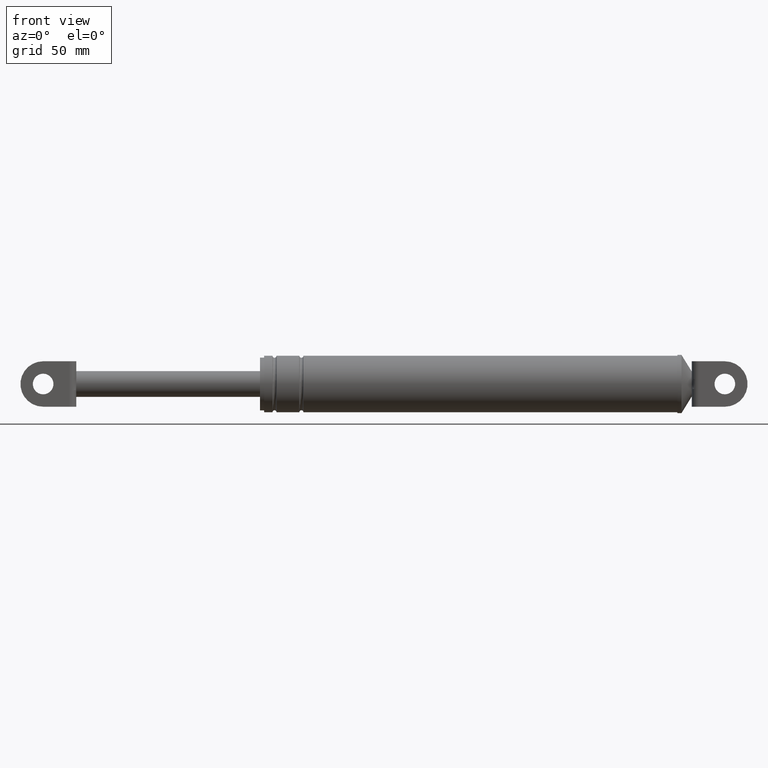
[diagram: clean part render]
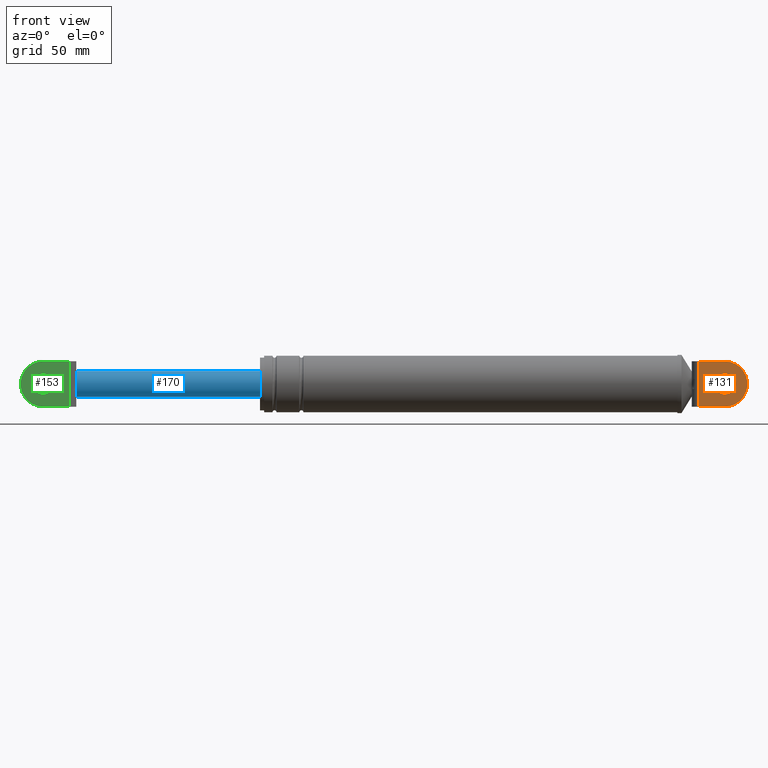
[diagram: same view with three faces highlighted in distinct colors, each labeled with its STEP entity id]
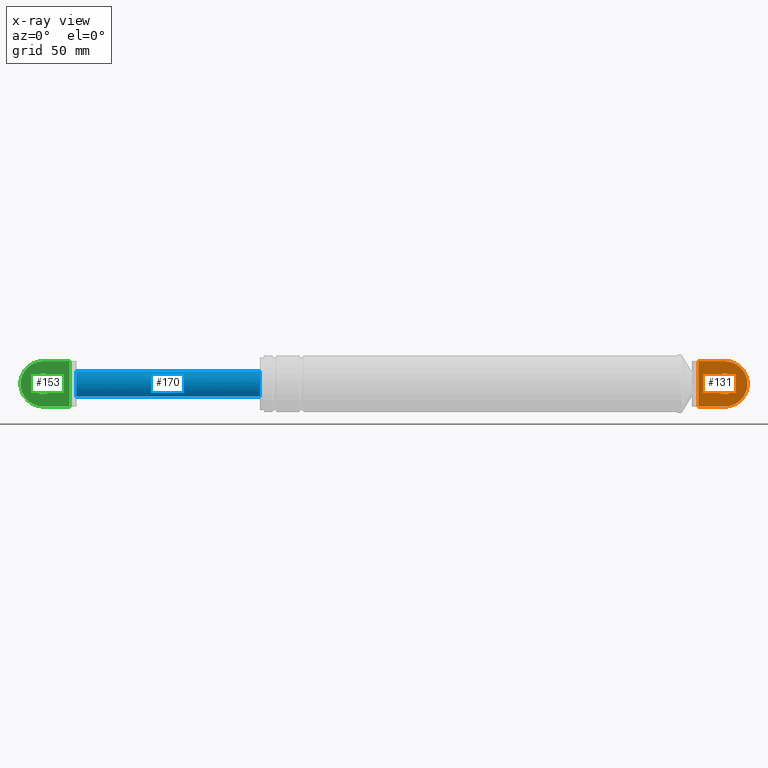
[diagram: x-ray of the same camera — body ghosted, the three highlighted faces saturated]
A machine part, front view with three faces highlighted in distinct colors.
The next image is the same camera in x-ray (body ghosted, the three faces saturated) — at least one of them is partly hidden behind the body in this view.
Their STEP definitions:

[orange] entity #131 — the highlighted planar face has unit normal (0, -1, 0).
#131=ADVANCED_FACE('',(#372,#373),#371,.T.);
#371=PLANE('',#1337);
#372=FACE_OUTER_BOUND('',#1338,.T.);
#373=FACE_BOUND('',#1339,.T.);
#1334=CARTESIAN_POINT('',(3.63950805697E+002,-8.69999700000E+000,1.77172911033E+002));
#1335=DIRECTION('',(0.00000000000E+000,-1.00000000000E+000,0.00000000000E+000));
#1336=DIRECTION('',(1.00000000000E+000,0.00000000000E+000,0.00000000000E+000));
#1337=AXIS2_PLACEMENT_3D('',#1334,#1335,#1336);
#1338=EDGE_LOOP('',(#2025,#2026,#2027,#2028,#2029,#2030));
#1339=EDGE_LOOP('',(#2031,#2032));
#2025=ORIENTED_EDGE('',*,*,#2290,.F.);
#2026=ORIENTED_EDGE('',*,*,#2265,.T.);
#2027=ORIENTED_EDGE('',*,*,#2267,.T.);
#2028=ORIENTED_EDGE('',*,*,#2270,.T.);
#2029=ORIENTED_EDGE('',*,*,#2296,.T.);
#2030=ORIENTED_EDGE('',*,*,#2248,.T.);
#2031=ORIENTED_EDGE('',*,*,#2303,.F.);
#2032=ORIENTED_EDGE('',*,*,#2304,.F.);
#2248=EDGE_CURVE('',#2447,#2440,#2448,.T.);
#2265=EDGE_CURVE('',#2549,#2556,#2563,.T.);
#2267=EDGE_CURVE('',#2556,#2570,#2577,.T.);
#2270=EDGE_CURVE('',#2570,#2589,#2597,.T.);
#2290=EDGE_CURVE('',#2549,#2440,#2732,.T.);
#2296=EDGE_CURVE('',#2589,#2447,#2769,.T.);
#2303=EDGE_CURVE('',#2815,#2816,#2817,.T.);
#2304=EDGE_CURVE('',#2816,#2815,#2823,.T.);
#2440=VERTEX_POINT('',#3459);
#2447=VERTEX_POINT('',#3463);
#2448=CIRCLE('',#3467,1.10000000000E+001);
#2549=VERTEX_POINT('',#3535);
#2556=VERTEX_POINT('',#3540);
#2563=LINE('',#3545,#3546);
#2570=VERTEX_POINT('',#3549);
#2577=(BOUNDED_CURVE() B_SPLINE_CURVE(3,(#3554,#3555,#3556,#3557,#3558,#3559,#3560,#3561,#3562,#3563),.UNSPECIFIED.,.F.,.F.) B_SPLINE_CURVE_WITH_KNOTS((4,2,2,2,4),(0.00000000000E+000,1.19890467989E-003,2.39780935978E-003,3.59671403966E-003,4.79561871955E-003),.UNSPECIFIED.) CURVE() GEOMETRIC_REPRESENTATION_ITEM() RATIONAL_B_SPLINE_CURVE((1.00000000000E+000,1.00000000000E+000,1.00000000000E+000,1.00000000000E+000,1.00000000000E+000,1.00000000000E+000,1.00000000000E+000,1.00000000000E+000,1.00000000000E+000,1.00000000000E+000)) REPRESENTATION_ITEM('') );
#2589=VERTEX_POINT('',#3568);
#2597=LINE('',#3574,#3575);
#2732=LINE('',#3662,#3663);
#2769=LINE('',#3681,#3682);
#2815=VERTEX_POINT('',#3711);
#2816=VERTEX_POINT('',#3712);
#2817=CIRCLE('',#3716,5.00000000000E+000);
#2823=CIRCLE('',#3720,5.00000000000E+000);
#3459=CARTESIAN_POINT('',(3.79174044462E+002,-8.69999700000E+000,2.01372912185E+002));
#3463=CARTESIAN_POINT('',(3.79174044462E+002,-8.69999700000E+000,1.79372912185E+002));
#3464=CARTESIAN_POINT('',(3.79174045421E+002,-8.69999700000E+000,1.90372912185E+002));
#3465=DIRECTION('',(0.00000000000E+000,-1.00000000000E+000,-0.00000000000E+000));
#3466=DIRECTION('',(-8.72664508346E-008,0.00000000000E+000,-1.00000000000E+000));
#3467=AXIS2_PLACEMENT_3D('',#3464,#3465,#3466);
#3535=CARTESIAN_POINT('',(3.66374045421E+002,-8.69999700000E+000,2.01372912185E+002));
#3540=CARTESIAN_POINT('',(3.66374045421E+002,-8.69999700000E+000,1.92770834827E+002));
#3545=CARTESIAN_POINT('',(3.66374045421E+002,-8.69999700000E+000,2.01372912185E+002));
#3546=VECTOR('',#3547,8.60207735738E+000);
#3547=DIRECTION('',(0.00000000000E+000,0.00000000000E+000,-1.00000000000E+000));
#3549=CARTESIAN_POINT('',(3.66374045421E+002,-8.69999700000E+000,1.87974989542E+002));
#3554=CARTESIAN_POINT('',(3.66374045421E+002,-8.69999700000E+000,1.92770834827E+002));
#3555=CARTESIAN_POINT('',(3.66374045421E+002,-8.69999700000E+000,1.92371178741E+002));
#3556=CARTESIAN_POINT('',(3.66362420076E+002,-8.69999700000E+000,1.91971642381E+002));
#3557=CARTESIAN_POINT('',(3.66342561150E+002,-8.69999700000E+000,1.91172534731E+002));
#3558=CARTESIAN_POINT('',(3.66334745568E+002,-8.69999700000E+000,1.90772959135E+002));
#3559=CARTESIAN_POINT('',(3.66334736581E+002,-8.69999700000E+000,1.89973647055E+002));
#3560=CARTESIAN_POINT('',(3.66342547254E+002,-8.69999700000E+000,1.89573888848E+002));
#3561=CARTESIAN_POINT('',(3.66362410726E+002,-8.69999700000E+000,1.88774518249E+002));
#3562=CARTESIAN_POINT('',(3.66374045421E+002,-8.69999700000E+000,1.88374865670E+002));
#3563=CARTESIAN_POINT('',(3.66374045421E+002,-8.69999700000E+000,1.87974989542E+002));
#3568=CARTESIAN_POINT('',(3.66374045421E+002,-8.69999700000E+000,1.79372912185E+002));
#3574=CARTESIAN_POINT('',(3.66374045421E+002,-8.69999700000E+000,1.87974989542E+002));
#3575=VECTOR('',#3576,8.60207735738E+000);
#3576=DIRECTION('',(0.00000000000E+000,0.00000000000E+000,-1.00000000000E+000));
#3662=CARTESIAN_POINT('',(3.66374045421E+002,-8.69999700000E+000,2.01372912185E+002));
#3663=VECTOR('',#3664,1.27999990401E+001);
#3664=DIRECTION('',(1.00000000000E+000,0.00000000000E+000,0.00000000000E+000));
#3681=CARTESIAN_POINT('',(3.66374045421E+002,-8.69999700000E+000,1.79372912185E+002));
#3682=VECTOR('',#3683,1.27999990401E+001);
#3683=DIRECTION('',(1.00000000000E+000,0.00000000000E+000,0.00000000000E+000));
#3711=CARTESIAN_POINT('',(3.79174045421E+002,-8.69999700000E+000,1.85372912185E+002));
#3712=CARTESIAN_POINT('',(3.79174045421E+002,-8.69999700000E+000,1.95372912185E+002));
#3713=CARTESIAN_POINT('',(3.79174045421E+002,-8.69999700000E+000,1.90372912185E+002));
#3714=DIRECTION('',(1.25607396695E-016,-1.00000000000E+000,0.00000000000E+000));
#3715=DIRECTION('',(1.22460635382E-016,1.53819616079E-032,1.00000000000E+000));
#3716=AXIS2_PLACEMENT_3D('',#3713,#3714,#3715);
#3717=CARTESIAN_POINT('',(3.79174045421E+002,-8.69999700000E+000,1.90372912185E+002));
#3718=DIRECTION('',(1.25607396695E-016,-1.00000000000E+000,0.00000000000E+000));
#3719=DIRECTION('',(1.22460635382E-016,1.53819616079E-032,1.00000000000E+000));
#3720=AXIS2_PLACEMENT_3D('',#3717,#3718,#3719);

[blue] entity #170 — the highlighted cylindrical surface (edge-blend (fillet) strip) has radius 6.25 mm, axis along (-1, -0, 0).
#170=ADVANCED_FACE('',(#767),#766,.T.);
#766=CYLINDRICAL_SURFACE('',#1902,6.25000000000E+000);
#767=FACE_OUTER_BOUND('',#1903,.T.);
#1899=CARTESIAN_POINT('',(5.62740454214E+001,-8.54724656640E-014,1.90372912185E+002));
#1900=DIRECTION('',(-1.00000000000E+000,-1.60777467769E-015,9.84478056393E-032));
#1901=DIRECTION('',(-1.82931579869E-028,1.13718131402E-013,-1.00000000000E+000));
#1902=AXIS2_PLACEMENT_3D('',#1899,#1900,#1901);
#1903=EDGE_LOOP('',(#2213,#2214,#2215,#2216,#2217,#2218));
#2213=ORIENTED_EDGE('',*,*,#2369,.F.);
#2214=ORIENTED_EDGE('',*,*,#2351,.F.);
#2215=ORIENTED_EDGE('',*,*,#2377,.F.);
#2216=ORIENTED_EDGE('',*,*,#2391,.F.);
#2217=ORIENTED_EDGE('',*,*,#2389,.F.);
#2218=ORIENTED_EDGE('',*,*,#2392,.T.);
#2351=EDGE_CURVE('',#3123,#3130,#3131,.T.);
#2369=EDGE_CURVE('',#3130,#3250,#3251,.T.);
#2377=EDGE_CURVE('',#3297,#3123,#3304,.T.);
#2389=EDGE_CURVE('',#3381,#3382,#3383,.T.);
#2391=EDGE_CURVE('',#3382,#3297,#3395,.T.);
#2392=EDGE_CURVE('',#3381,#3250,#3401,.T.);
#3123=VERTEX_POINT('',#3895);
#3130=VERTEX_POINT('',#3900);
#3131=CIRCLE('',#3904,6.25000000000E+000);
#3250=VERTEX_POINT('',#3982);
#3251=CIRCLE('',#3986,6.25000000000E+000);
#3297=VERTEX_POINT('',#4012);
#3304=CIRCLE('',#4020,6.25000000000E+000);
#3381=VERTEX_POINT('',#4063);
#3382=VERTEX_POINT('',#4064);
#3383=CIRCLE('',#4068,6.25000000000E+000);
#3395=(BOUNDED_CURVE() B_SPLINE_CURVE(1,(#4073,#4074),.UNSPECIFIED.,.F.,.F.) B_SPLINE_CURVE_WITH_KNOTS((2,2),(8.33333332085E-002,9.16666666563E-001),.UNSPECIFIED.) CURVE() GEOMETRIC_REPRESENTATION_ITEM() RATIONAL_B_SPLINE_CURVE((1.00000000000E+000,1.00000000000E+000)) REPRESENTATION_ITEM('') );
#3401=(BOUNDED_CURVE() B_SPLINE_CURVE(1,(#4075,#4076),.UNSPECIFIED.,.F.,.F.) B_SPLINE_CURVE_WITH_KNOTS((2,2),(8.33333333333E-002,9.16666666667E-001),.UNSPECIFIED.) CURVE() GEOMETRIC_REPRESENTATION_ITEM() RATIONAL_B_SPLINE_CURVE((7.50000000000E-001,7.50000000000E-001)) REPRESENTATION_ITEM('') );
#3895=CARTESIAN_POINT('',(6.51740454214E+001,-5.49999700000E+000,1.87404321105E+002));
#3900=CARTESIAN_POINT('',(6.51740454214E+001,-5.49999700000E+000,1.93341503265E+002));
#3901=CARTESIAN_POINT('',(6.51740454214E+001,-5.57776047572E-013,1.90372912185E+002));
#3902=DIRECTION('',(-1.00000000000E+000,-1.44325364090E-014,-6.76990380730E-015));
#3903=DIRECTION('',(-1.59161572810E-014,8.79999520000E-001,4.74974572793E-001));
#3904=AXIS2_PLACEMENT_3D('',#3901,#3902,#3903);
#3982=CARTESIAN_POINT('',(6.51740454214E+001,7.57709452622E-007,1.96622912185E+002));
#3983=CARTESIAN_POINT('',(6.51740454214E+001,3.86357612570E-013,1.90372912185E+002));
#3984=DIRECTION('',(-1.00000000000E+000,-1.17418449198E-014,6.96795749255E-015));
#3985=DIRECTION('',(-1.36424205266E-014,8.79999520000E-001,-4.74974572793E-001));
#3986=AXIS2_PLACEMENT_3D('',#3983,#3984,#3985);
#4012=CARTESIAN_POINT('',(6.51740454214E+001,4.91249817418E-012,1.84122912185E+002));
#4017=CARTESIAN_POINT('',(6.51740454214E+001,1.12887477144E-012,1.90372912185E+002));
#4018=DIRECTION('',(-1.00000000000E+000,0.00000000000E+000,0.00000000000E+000));
#4019=DIRECTION('',(-0.00000000000E+000,-8.79999520000E-001,4.74974572793E-001));
#4020=AXIS2_PLACEMENT_3D('',#4017,#4018,#4019);
#4063=CARTESIAN_POINT('',(1.54174045421E+002,7.19286752820E-014,1.96622912185E+002));
#4064=CARTESIAN_POINT('',(1.54174045421E+002,7.28306304154E-014,1.84122912185E+002));
#4065=CARTESIAN_POINT('',(1.54174045421E+002,7.19286752820E-014,1.90372912185E+002));
#4066=DIRECTION('',(1.00000000000E+000,0.00000000000E+000,-0.00000000000E+000));
#4067=DIRECTION('',(0.00000000000E+000,-1.22460635382E-016,1.00000000000E+000));
#4068=AXIS2_PLACEMENT_3D('',#4065,#4066,#4067);
#4073=CARTESIAN_POINT('',(1.54174045435E+002,7.82666996569E-013,1.84122912185E+002));
#4074=CARTESIAN_POINT('',(6.51740454325E+001,6.39575050250E-013,1.84122912185E+002));
#4075=CARTESIAN_POINT('',(1.54174045421E+002,-6.38674298633E-013,1.96622912185E+002));
#4076=CARTESIAN_POINT('',(6.51740454214E+001,-7.81522994468E-013,1.96622912185E+002));

[green] entity #153 — the highlighted planar face has unit normal (0, -1, 0).
#153=ADVANCED_FACE('',(#593,#594),#592,.T.);
#592=PLANE('',#1544);
#593=FACE_OUTER_BOUND('',#1545,.T.);
#594=FACE_BOUND('',#1546,.T.);
#1541=CARTESIAN_POINT('',(3.57851291797E+001,-8.69999700000E+000,2.03572912185E+002));
#1542=DIRECTION('',(0.00000000000E+000,-1.00000000000E+000,0.00000000000E+000));
#1543=DIRECTION('',(0.00000000000E+000,0.00000000000E+000,-1.00000000000E+000));
#1544=AXIS2_PLACEMENT_3D('',#1541,#1542,#1543);
#1545=EDGE_LOOP('',(#2121,#2122,#2123,#2124,#2125,#2126));
#1546=EDGE_LOOP('',(#2127,#2128));
#2121=ORIENTED_EDGE('',*,*,#2339,.F.);
#2122=ORIENTED_EDGE('',*,*,#2340,.T.);
#2123=ORIENTED_EDGE('',*,*,#2341,.T.);
#2124=ORIENTED_EDGE('',*,*,#2342,.T.);
#2125=ORIENTED_EDGE('',*,*,#2343,.T.);
#2126=ORIENTED_EDGE('',*,*,#2337,.T.);
#2127=ORIENTED_EDGE('',*,*,#2344,.F.);
#2128=ORIENTED_EDGE('',*,*,#2345,.F.);
#2337=EDGE_CURVE('',#3034,#3027,#3035,.T.);
#2339=EDGE_CURVE('',#3047,#3027,#3048,.T.);
#2340=EDGE_CURVE('',#3047,#3054,#3055,.T.);
#2341=EDGE_CURVE('',#3054,#3061,#3062,.T.);
#2342=EDGE_CURVE('',#3061,#3068,#3069,.T.);
#2343=EDGE_CURVE('',#3068,#3034,#3075,.T.);
#2344=EDGE_CURVE('',#3081,#3082,#3083,.T.);
#2345=EDGE_CURVE('',#3082,#3081,#3089,.T.);
#3027=VERTEX_POINT('',#3829);
#3034=VERTEX_POINT('',#3833);
#3035=CIRCLE('',#3837,1.10000000000E+001);
#3047=VERTEX_POINT('',#3841);
#3048=LINE('',#3842,#3843);
#3054=VERTEX_POINT('',#3845);
#3055=LINE('',#3846,#3847);
#3061=VERTEX_POINT('',#3849);
#3062=(BOUNDED_CURVE() B_SPLINE_CURVE(3,(#3850,#3851,#3852,#3853,#3854,#3855,#3856,#3857,#3858,#3859),.UNSPECIFIED.,.F.,.F.) B_SPLINE_CURVE_WITH_KNOTS((4,2,2,2,4),(0.00000000000E+000,1.48458878572E-003,2.96917757145E-003,4.45376635717E-003,5.93835514290E-003),.UNSPECIFIED.) CURVE() GEOMETRIC_REPRESENTATION_ITEM() RATIONAL_B_SPLINE_CURVE((1.00000000000E+000,1.00000000000E+000,1.00000000000E+000,1.00000000000E+000,1.00000000000E+000,1.00000000000E+000,1.00000000000E+000,1.00000000000E+000,1.00000000000E+000,1.00000000000E+000)) REPRESENTATION_ITEM('') );
#3068=VERTEX_POINT('',#3860);
#3069=LINE('',#3861,#3862);
#3075=LINE('',#3864,#3865);
#3081=VERTEX_POINT('',#3867);
#3082=VERTEX_POINT('',#3868);
#3083=CIRCLE('',#3872,5.00000000000E+000);
#3089=CIRCLE('',#3876,5.00000000000E+000);
#3829=CARTESIAN_POINT('',(4.91740444615E+001,-8.69999700000E+000,1.79372912185E+002));
#3833=CARTESIAN_POINT('',(4.91740444615E+001,-8.69999700000E+000,2.01372912185E+002));
#3834=CARTESIAN_POINT('',(4.91740454214E+001,-8.69999700000E+000,1.90372912185E+002));
#3835=DIRECTION('',(0.00000000000E+000,-1.00000000000E+000,0.00000000000E+000));
#3836=DIRECTION('',(8.72664584635E-008,-0.00000000000E+000,-1.00000000000E+000));
#3837=AXIS2_PLACEMENT_3D('',#3834,#3835,#3836);
#3841=CARTESIAN_POINT('',(6.19740454214E+001,-8.69999700000E+000,1.79372912185E+002));
#3842=CARTESIAN_POINT('',(6.19740454214E+001,-8.69999700000E+000,1.79372912185E+002));
#3843=VECTOR('',#3844,1.28000009599E+001);
#3844=DIRECTION('',(-1.00000000000E+000,0.00000000000E+000,0.00000000000E+000));
#3845=CARTESIAN_POINT('',(6.19740454214E+001,-8.69999700000E+000,1.87404321105E+002));
#3846=CARTESIAN_POINT('',(6.19740454214E+001,-8.69999700000E+000,1.79372912185E+002));
#3847=VECTOR('',#3848,8.03140892004E+000);
#3848=DIRECTION('',(0.00000000000E+000,0.00000000000E+000,1.00000000000E+000));
#3849=CARTESIAN_POINT('',(6.19740454214E+001,-8.69999700000E+000,1.93341503265E+002));
#3850=CARTESIAN_POINT('',(6.19740454214E+001,-8.69999700000E+000,1.87404321105E+002));
#3851=CARTESIAN_POINT('',(6.19740454214E+001,-8.69999700000E+000,1.87899184225E+002));
#3852=CARTESIAN_POINT('',(6.19995851788E+001,-8.69999700000E+000,1.88393490707E+002));
#3853=CARTESIAN_POINT('',(6.20448083172E+001,-8.69999700000E+000,1.89382202181E+002));
#3854=CARTESIAN_POINT('',(6.20631482761E+001,-8.69999700000E+000,1.89876657447E+002));
#3855=CARTESIAN_POINT('',(6.20632078386E+001,-8.69999700000E+000,1.90866421227E+002));
#3856=CARTESIAN_POINT('',(6.20448932170E+001,-8.69999700000E+000,1.91361658201E+002));
#3857=CARTESIAN_POINT('',(6.19996399495E+001,-8.69999700000E+000,1.92351243707E+002));
#3858=CARTESIAN_POINT('',(6.19740454214E+001,-8.69999700000E+000,1.92845934697E+002));
#3859=CARTESIAN_POINT('',(6.19740454214E+001,-8.69999700000E+000,1.93341503265E+002));
#3860=CARTESIAN_POINT('',(6.19740454214E+001,-8.69999700000E+000,2.01372912185E+002));
#3861=CARTESIAN_POINT('',(6.19740454214E+001,-8.69999700000E+000,1.93341503265E+002));
#3862=VECTOR('',#3863,8.03140892004E+000);
#3863=DIRECTION('',(0.00000000000E+000,0.00000000000E+000,1.00000000000E+000));
#3864=CARTESIAN_POINT('',(6.19740454214E+001,-8.69999700000E+000,2.01372912185E+002));
#3865=VECTOR('',#3866,1.28000009599E+001);
#3866=DIRECTION('',(-1.00000000000E+000,0.00000000000E+000,0.00000000000E+000));
#3867=CARTESIAN_POINT('',(4.91740454214E+001,-8.69999700000E+000,1.85372912185E+002));
#3868=CARTESIAN_POINT('',(4.91740454214E+001,-8.69999700000E+000,1.95372912185E+002));
#3869=CARTESIAN_POINT('',(4.91740454214E+001,-8.69999700000E+000,1.90372912185E+002));
#3870=DIRECTION('',(0.00000000000E+000,-1.00000000000E+000,0.00000000000E+000));
#3871=DIRECTION('',(1.22460635382E-016,0.00000000000E+000,1.00000000000E+000));
#3872=AXIS2_PLACEMENT_3D('',#3869,#3870,#3871);
#3873=CARTESIAN_POINT('',(4.91740454214E+001,-8.69999700000E+000,1.90372912185E+002));
#3874=DIRECTION('',(0.00000000000E+000,-1.00000000000E+000,0.00000000000E+000));
#3875=DIRECTION('',(1.22460635382E-016,0.00000000000E+000,1.00000000000E+000));
#3876=AXIS2_PLACEMENT_3D('',#3873,#3874,#3875);